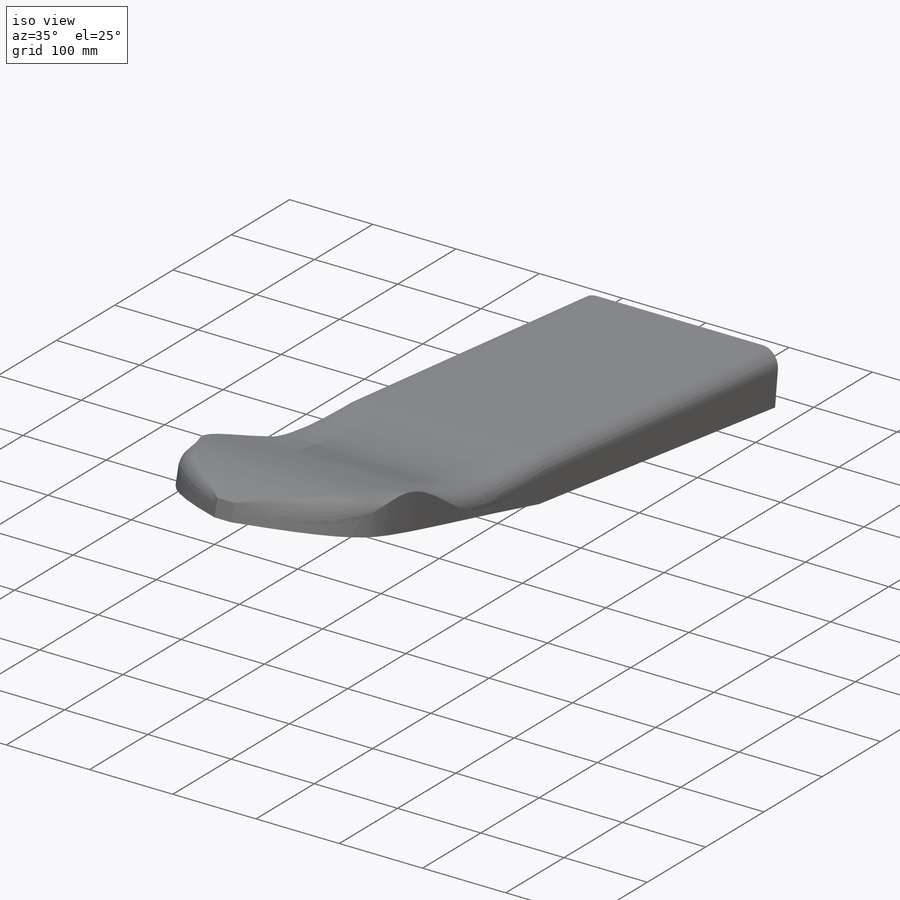
[diagram: iso view]
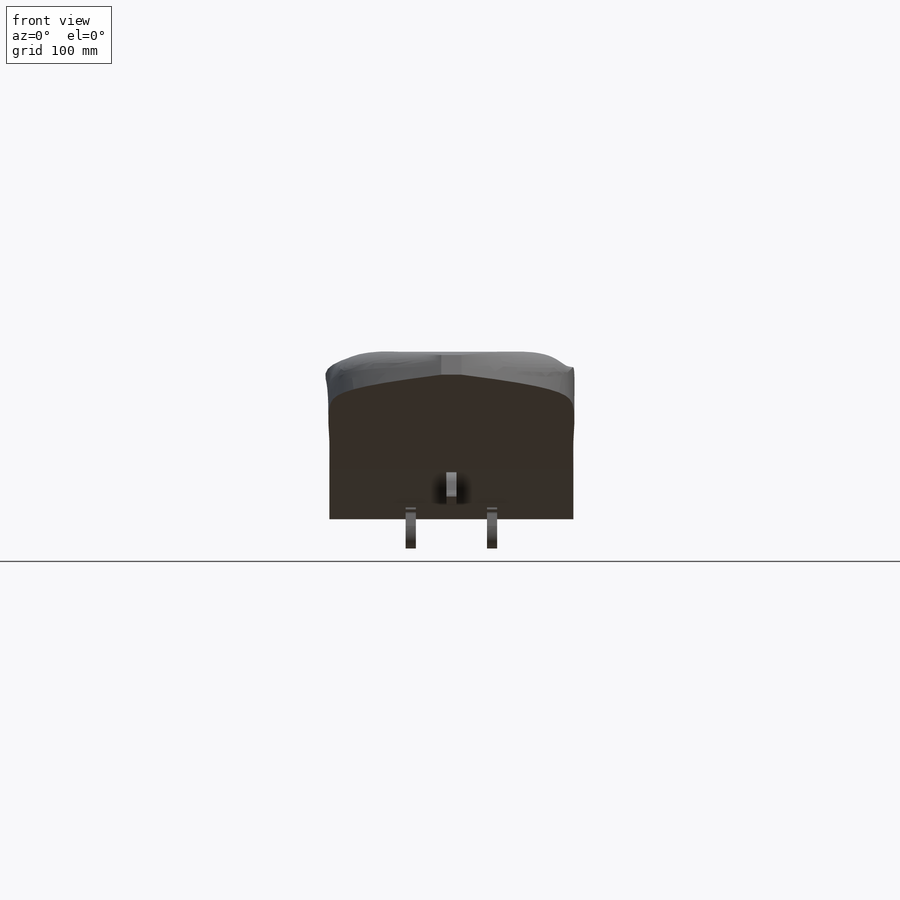
[diagram: front view]
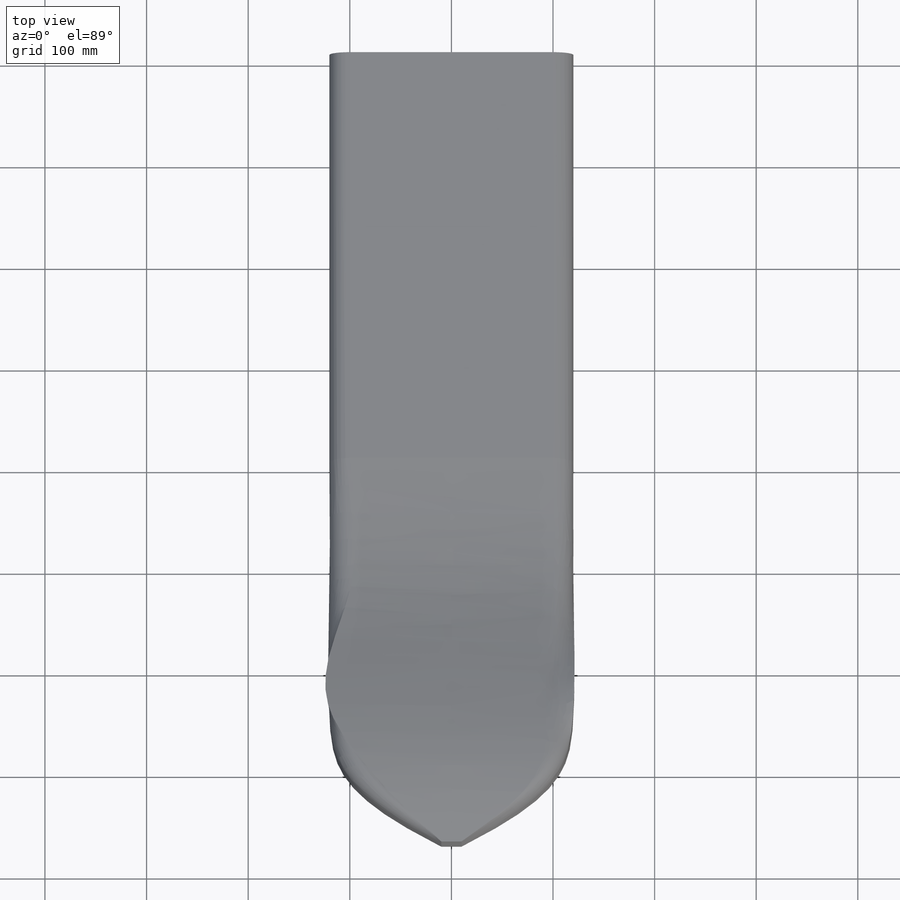
[diagram: top view]
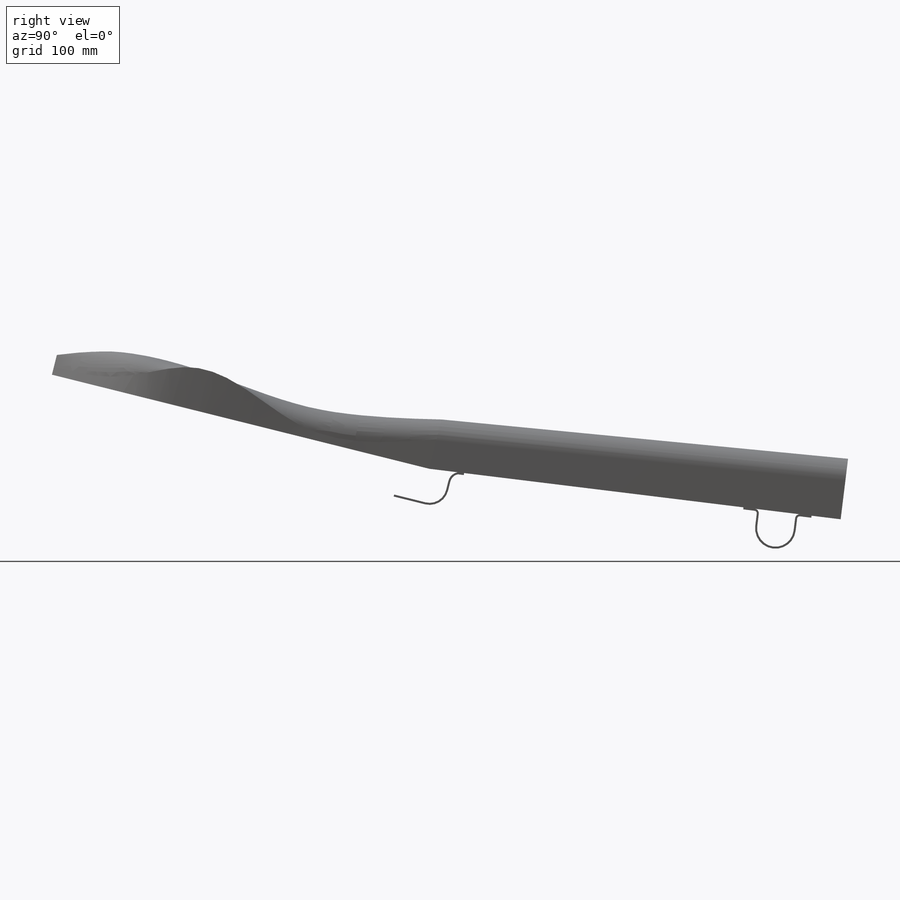
[diagram: right view]
SOLIDWORKS PART (.sldprt)
format: sldprt  version: not decoded by parser v0  size: 516,096 bytes
history: native  units: mm
features: sketch x16, plane x14, extrude x2, material x1, pattern_linear x1 (+10 scaffold rows collapsed)
feature tree (44):
  scaffold x10  (default folders/planes/origin — collapsed)
  material  "Polibutadieno (PB)"
  plane  "Alzado"
  plane  "Planta"
  plane  "Vista lateral"
  sketch  "Croquis1"  dims[c1.D1=~382.700764mm c1.D2=~407.849492mm c1.D3=~382.700764mm c2.D3=173.0deg]
  plane  "Plano1"  Offset=120mm
  sketch  "Croquis2"  dims[D1=~254.961076mm]
  plane  "Plano2"  Offset=240mm
  sketch  "Croquis3"
  plane  "Plano3"
  sketch  "Croquis4"
  plane  "Plano4"
  sketch  "Croquis5"
  sketch  "Croquis6"
  plane  "Plano5"
  sketch  "Croquis7"  dims[c1.D1=10.0mm c1.D2=~24.852175mm c2.D1=10.0mm c2.D2=20.0mm]
  plane  "Plano6"  Offset=80mm
  sketch  "Croquis8"  dims[c1.D1=20.0mm c1.D3=20.0mm c2.D1=40.0mm c2.D2=40.0mm]
  plane  "Plano7"  Offset=130mm
  sketch  "Croquis9"  dims[D1=40.0mm]
  plane  "Plano8"
  sketch  "Croquis10"  dims[50=40.0mm D1=50.0mm]
  plane  "Plano9"  Offset=130mm
  sketch  "Croquis11"  dims[D1=20.0mm]
  plane  "Plano10"
  sketch  "Croquis12"  dims[D1=60.0mm]
  sketch  "Croquis13"  dims[D1=62.6mm D2=32.4mm]
  sketch  "Croquis14"  dims[D1=33.4mm D2=2.0mm]
  plane  "Plano11"  Offset=40mm
  sketch  "Croquis15"
  extrude  "Saliente-Extruir1"  Depth=10mm
  pattern_linear  "MatrizL1"  Count1=2 Count2=1 Spacing1=80mm Spacing2=10mm
  sketch  "Croquis16"  dims[D1=33.5mm D2=2.0mm]
  extrude  "Saliente-Extruir2"  Depth=10mm
decode coverage: 14 of 19 modeling features carry decoded parameters
note: ~ marks probable driven/reference dimensions
note: suppression state not decoded; provenance and decode notes live in map.json
